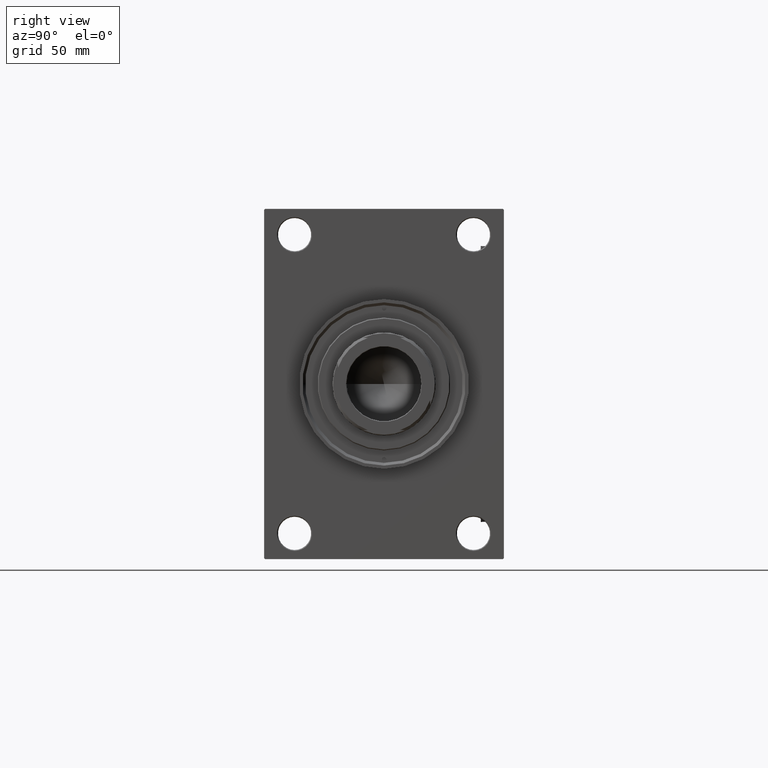
[diagram: clean part render]
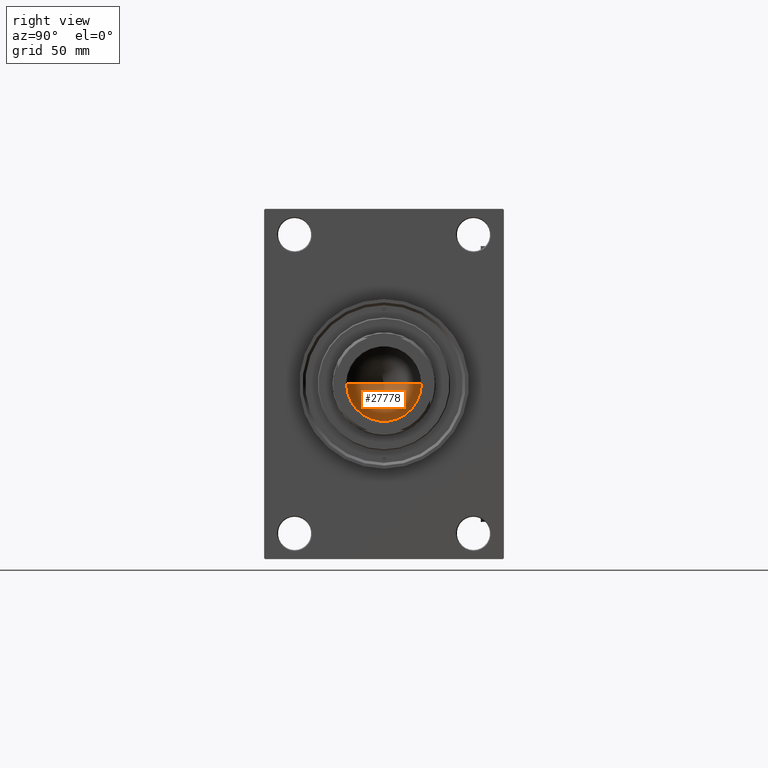
[diagram: same view with one face highlighted and labeled with its STEP entity id]
A machine part, right view. The second image highlights one B-rep face of the part: STEP entity #27778.
In plain terms, the highlighted conical surface has half-angle 59 deg.
Its self-contained STEP definition (entity closure, byte-faithful):
#2616 = LINE ( 'NONE', #41656, #28932 ) ;
#4007 = DIRECTION ( 'NONE',  ( 1.000000000000000000, 0.000000000000000000, 0.000000000000000000 ) ) ;
#6174 = CARTESIAN_POINT ( 'NONE',  ( -1.584115414415908206E-14, 0.000000000000000000, 184.8325724646918786 ) ) ;
#6409 = DIRECTION ( 'NONE',  ( -0.8571673007021112234, 1.049727191138617340E-16, 0.5150380749100560429 ) ) ;
#8314 = EDGE_LOOP ( 'NONE', ( #32310, #13538, #11331 ) ) ;
#8584 = CARTESIAN_POINT ( 'NONE',  ( 20.24999999999998934, 0.000000000000000000, 197.0000000000000000 ) ) ;
#11284 = CARTESIAN_POINT ( 'NONE',  ( 0.000000000000000000, 0.000000000000000000, 197.0000000000000000 ) ) ;
#11331 = ORIENTED_EDGE ( 'NONE', *, *, #38119, .T. ) ;
#13538 = ORIENTED_EDGE ( 'NONE', *, *, #46055, .T. ) ;
#15079 = FACE_OUTER_BOUND ( 'NONE', #8314, .T. ) ;
#18446 = VECTOR ( 'NONE', #36105, 1000.000000000000000 ) ;
#20125 = CARTESIAN_POINT ( 'NONE',  ( -20.24999999999998934, 2.479909768273389117E-15, 197.0000000000000000 ) ) ;
#20200 = CARTESIAN_POINT ( 'NONE',  ( 0.000000000000000000, 0.000000000000000000, 197.0000000000000000 ) ) ;
#20626 = LINE ( 'NONE', #31535, #18446 ) ;
#20987 = CIRCLE ( 'NONE', #49364, 20.24999999999998934 ) ;
#24816 = AXIS2_PLACEMENT_3D ( 'NONE', #11284, #26755, #42223 ) ;
#26755 = DIRECTION ( 'NONE',  ( -0.000000000000000000, -0.000000000000000000, 1.000000000000000000 ) ) ;
#27079 = DIRECTION ( 'NONE',  ( -0.000000000000000000, -0.000000000000000000, 1.000000000000000000 ) ) ;
#27778 = ADVANCED_FACE ( 'NONE', ( #15079 ), #46673, .F. ) ;
#28932 = VECTOR ( 'NONE', #6409, 1000.000000000000000 ) ;
#31535 = CARTESIAN_POINT ( 'NONE',  ( 20.24999999999998934, 0.000000000000000000, 197.0000000000000000 ) ) ;
#32310 = ORIENTED_EDGE ( 'NONE', *, *, #44386, .F. ) ;
#36105 = DIRECTION ( 'NONE',  ( 0.8571673007021112234, 0.000000000000000000, 0.5150380749100560429 ) ) ;
#37308 = VERTEX_POINT ( 'NONE', #8584 ) ;
#38119 = EDGE_CURVE ( 'NONE', #37308, #49077, #20987, .T. ) ;
#41656 = CARTESIAN_POINT ( 'NONE',  ( -20.24999999999998934, 2.479909768273389117E-15, 197.0000000000000000 ) ) ;
#42223 = DIRECTION ( 'NONE',  ( 1.000000000000000000, 0.000000000000000000, 0.000000000000000000 ) ) ;
#44386 = EDGE_CURVE ( 'NONE', #46083, #49077, #2616, .T. ) ;
#46055 = EDGE_CURVE ( 'NONE', #46083, #37308, #20626, .T. ) ;
#46083 = VERTEX_POINT ( 'NONE', #6174 ) ;
#46673 = CONICAL_SURFACE ( 'NONE', #24816, 20.24999999999998934, 1.029744258676652313 ) ;
#49077 = VERTEX_POINT ( 'NONE', #20125 ) ;
#49364 = AXIS2_PLACEMENT_3D ( 'NONE', #20200, #27079, #4007 ) ;